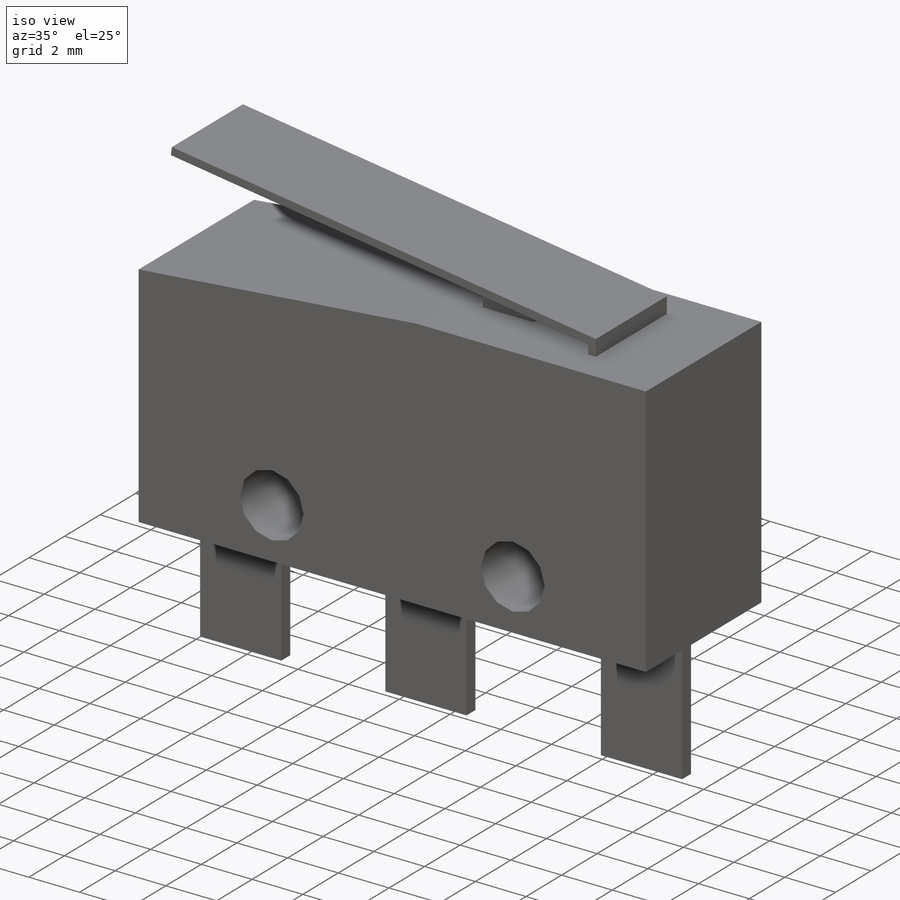
[diagram: iso view]
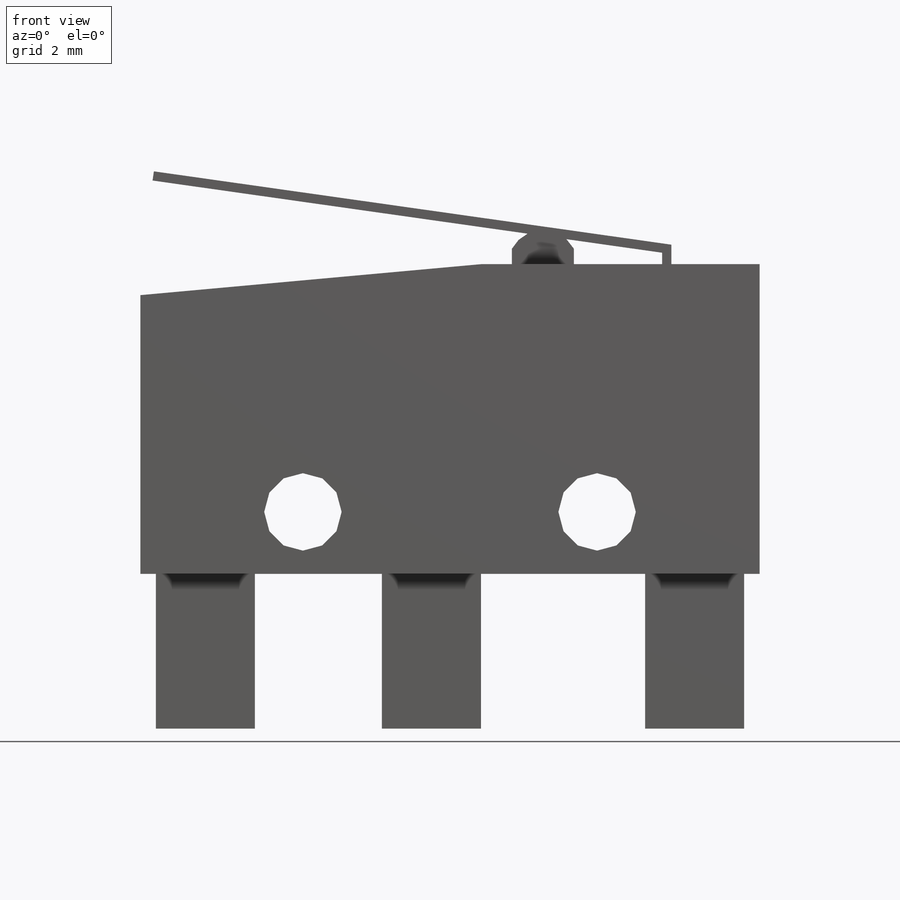
[diagram: front view]
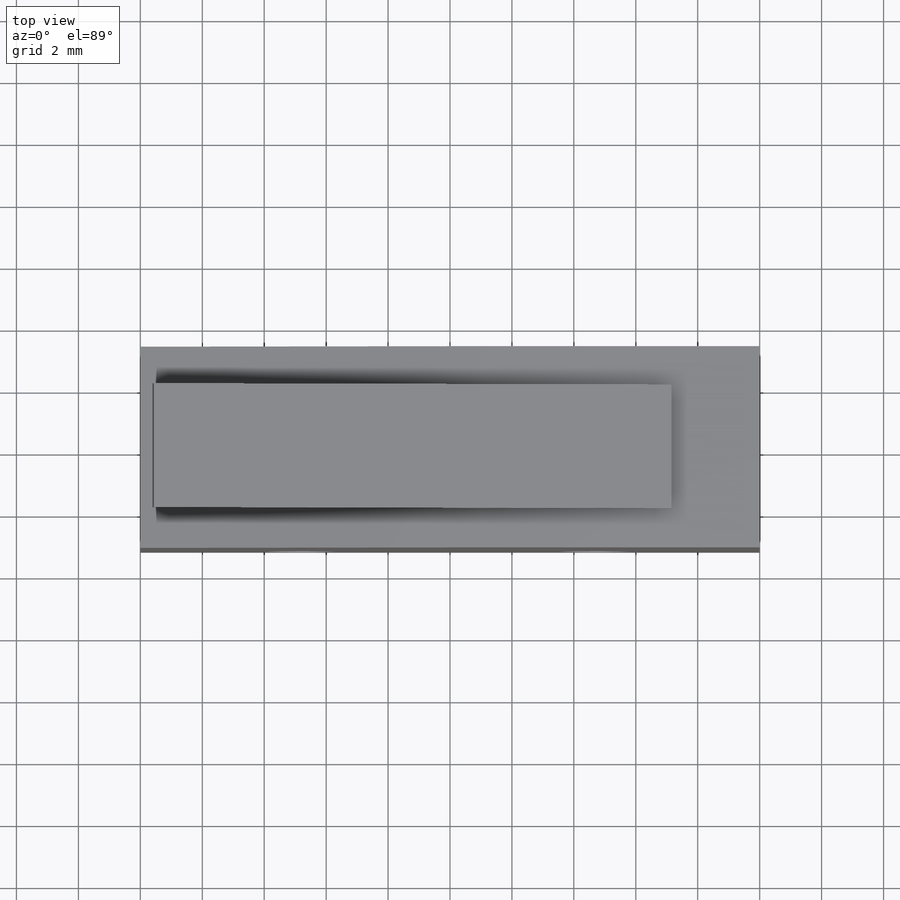
[diagram: top view]
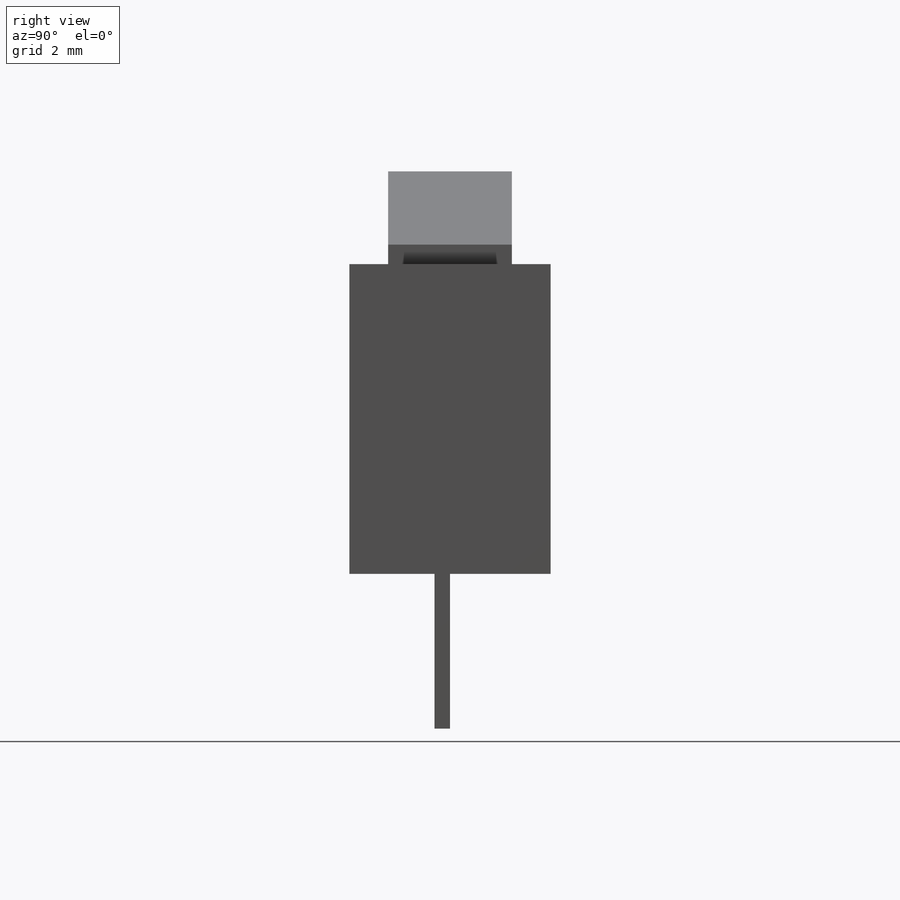
[diagram: right view]
SOLIDWORKS PART (.sldprt)
format: sldprt  version: not decoded by parser v0  size: 240,640 bytes
history: native  units: mm
features: sketch x7, extrude x4, cut_extrude x2, material x1 (+11 scaffold rows collapsed)
feature tree (25):
  scaffold x11  (default folders/planes/origin — collapsed)
  material  "Material <not specified>"
  sketch  "Sketch1"  dims[D1=20.0mm D2=10.0mm]
  extrude  "Boss-Body"  Depth=6.5mm
  sketch  "Sketch2"  dims[D1=9.0mm D2=1.0mm]
  cut_extrude  "Cut-Top Angle"  [1 undecoded]
  sketch  "Sketch3"  dims[D1=6.0mm D2=2.0mm D3=0.5mm]
  extrude  "Boss-Button"  Depth=2mm
  sketch  "Sketch4"  dims[D1=0.6mm]
  extrude  "Boss-Button Round Top"  Depth=2mm
  sketch  "Sketch5"  dims[D2=2.5mm D1=9.5mm D3=2.0mm]
  cut_extrude  "Cut-Extrude2"  [1 undecoded]
  sketch  "Sketch6"  dims[D1=5.0mm D2=3.2mm D3=0.5mm D4=9.0mm]
  extrude  "Boss-Extrude4"  Depth=0.5mm
  sketch  "Sketch7"  dims[c1.D1=16.75mm c1.D2=3.0mm c1.D3=0.5mm c1.D4=3.85mm c2.D1=4.0mm c2.D5=0.3mm c2.D6=10.0mm c2.D7=5.0mm]
decode coverage: 11 of 13 modeling features carry decoded parameters
note: 2 parameter values undecoded
note: suppression state not decoded; provenance and decode notes live in map.json
